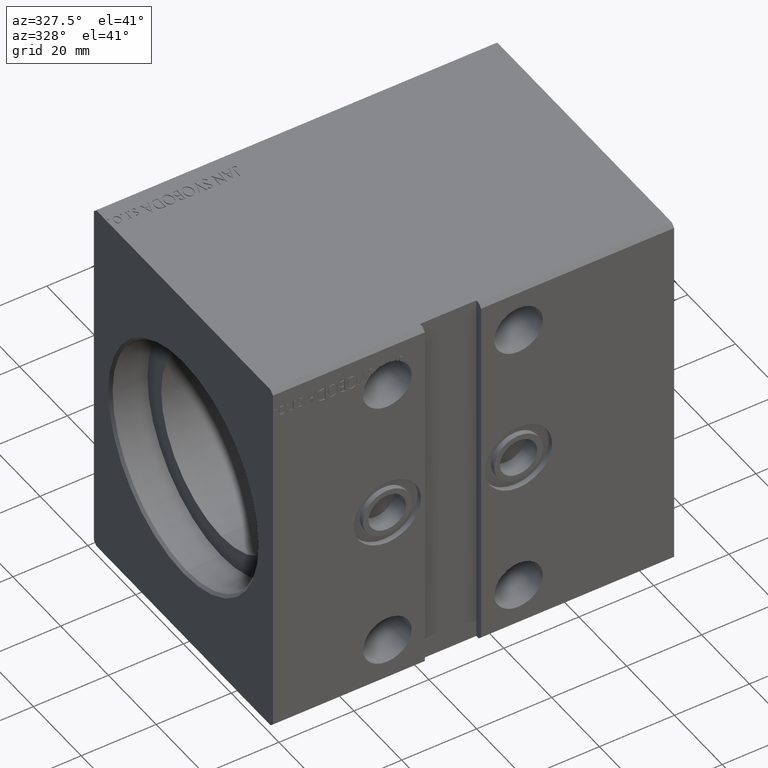
[diagram: clean part render]
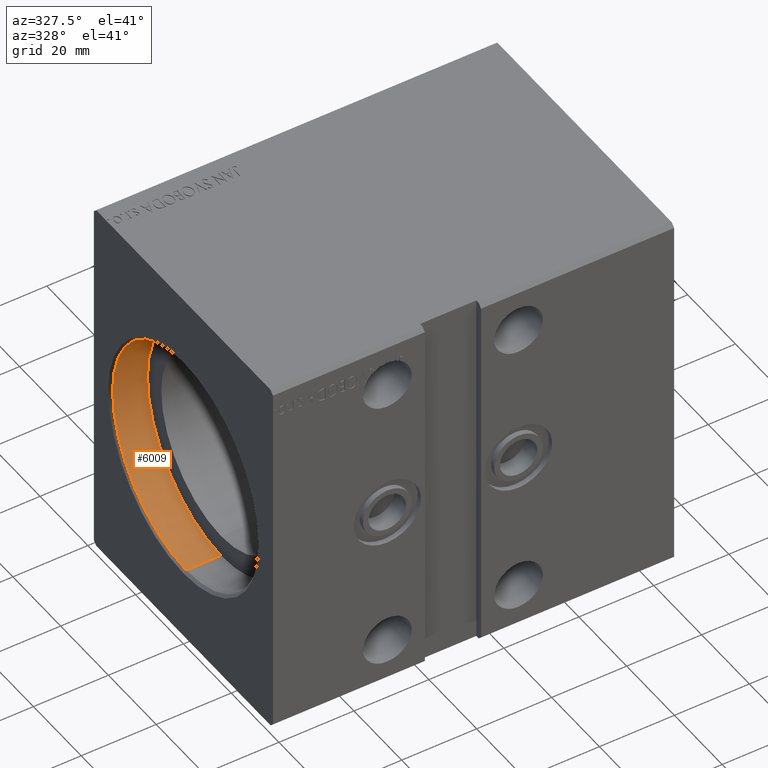
[diagram: same view with one face highlighted and labeled with its STEP entity id]
A machine part, auxiliary view. The second image highlights one B-rep face of the part: STEP entity #6009.
In plain terms, the highlighted cylindrical surface (partial cylindrical patch) has radius 30.75 mm, axis along (-1, -0, -0).
Its self-contained STEP definition (entity closure, byte-faithful):
#1152 = CIRCLE ( 'NONE', #33422, 30.75000000000000355 ) ;
#2487 = DIRECTION ( 'NONE',  ( -1.000000000000000000, -0.000000000000000000, -0.000000000000000000 ) ) ;
#2972 = DIRECTION ( 'NONE',  ( -1.000000000000000000, 0.000000000000000000, 0.000000000000000000 ) ) ;
#4252 = DIRECTION ( 'NONE',  ( -1.000000000000000000, -0.000000000000000000, -0.000000000000000000 ) ) ;
#6009 = ADVANCED_FACE ( 'NONE', ( #9423 ), #21982, .F. ) ;
#7353 = LINE ( 'NONE', #39078, #13417 ) ;
#7680 = DIRECTION ( 'NONE',  ( -1.000000000000000000, 0.000000000000000000, 0.000000000000000000 ) ) ;
#9261 = LINE ( 'NONE', #15235, #16285 ) ;
#9423 = FACE_OUTER_BOUND ( 'NONE', #38314, .T. ) ;
#13374 = EDGE_CURVE ( 'NONE', #37336, #15448, #37843, .T. ) ;
#13417 = VECTOR ( 'NONE', #35777, 1000.000000000000000 ) ;
#13646 = DIRECTION ( 'NONE',  ( 0.000000000000000000, 0.000000000000000000, 1.000000000000000000 ) ) ;
#15235 = CARTESIAN_POINT ( 'NONE',  ( 10.00000000000000000, 0.000000000000000000, 30.75000000000000355 ) ) ;
#15448 = VERTEX_POINT ( 'NONE', #29263 ) ;
#15458 = CARTESIAN_POINT ( 'NONE',  ( 0.7000000000000234923, 0.000000000000000000, 30.75000000000000355 ) ) ;
#16285 = VECTOR ( 'NONE', #2487, 1000.000000000000000 ) ;
#18616 = CARTESIAN_POINT ( 'NONE',  ( 0.7000000000000234923, 0.000000000000000000, 0.000000000000000000 ) ) ;
#18895 = CARTESIAN_POINT ( 'NONE',  ( 10.00000000000000000, 0.000000000000000000, 0.000000000000000000 ) ) ;
#19022 = DIRECTION ( 'NONE',  ( 0.000000000000000000, 0.000000000000000000, -1.000000000000000000 ) ) ;
#19423 = CARTESIAN_POINT ( 'NONE',  ( 10.00000000000000000, 0.000000000000000000, 0.000000000000000000 ) ) ;
#20081 = AXIS2_PLACEMENT_3D ( 'NONE', #19423, #7680, #13646 ) ;
#20170 = EDGE_CURVE ( 'NONE', #36597, #33819, #1152, .T. ) ;
#20861 = ORIENTED_EDGE ( 'NONE', *, *, #20170, .T. ) ;
#21982 = CYLINDRICAL_SURFACE ( 'NONE', #33092, 30.75000000000000355 ) ;
#23808 = ORIENTED_EDGE ( 'NONE', *, *, #24426, .T. ) ;
#23944 = CARTESIAN_POINT ( 'NONE',  ( 0.7000000000000234923, 3.765788907378111328E-15, -30.75000000000000355 ) ) ;
#24426 = EDGE_CURVE ( 'NONE', #37336, #36597, #9261, .T. ) ;
#24828 = ORIENTED_EDGE ( 'NONE', *, *, #13374, .F. ) ;
#24945 = ORIENTED_EDGE ( 'NONE', *, *, #30254, .F. ) ;
#29263 = CARTESIAN_POINT ( 'NONE',  ( 10.00000000000000000, 3.765788907378111328E-15, -30.75000000000000355 ) ) ;
#30254 = EDGE_CURVE ( 'NONE', #15448, #33819, #7353, .T. ) ;
#33092 = AXIS2_PLACEMENT_3D ( 'NONE', #18895, #4252, #38451 ) ;
#33422 = AXIS2_PLACEMENT_3D ( 'NONE', #18616, #2972, #19022 ) ;
#33819 = VERTEX_POINT ( 'NONE', #23944 ) ;
#35777 = DIRECTION ( 'NONE',  ( -1.000000000000000000, -0.000000000000000000, -0.000000000000000000 ) ) ;
#36597 = VERTEX_POINT ( 'NONE', #15458 ) ;
#37306 = CARTESIAN_POINT ( 'NONE',  ( 10.00000000000000000, 0.000000000000000000, 30.75000000000000355 ) ) ;
#37336 = VERTEX_POINT ( 'NONE', #37306 ) ;
#37843 = CIRCLE ( 'NONE', #20081, 30.75000000000000355 ) ;
#38314 = EDGE_LOOP ( 'NONE', ( #24945, #24828, #23808, #20861 ) ) ;
#38451 = DIRECTION ( 'NONE',  ( 0.000000000000000000, 0.000000000000000000, 1.000000000000000000 ) ) ;
#39078 = CARTESIAN_POINT ( 'NONE',  ( 10.00000000000000000, 3.765788907378111328E-15, -30.75000000000000355 ) ) ;